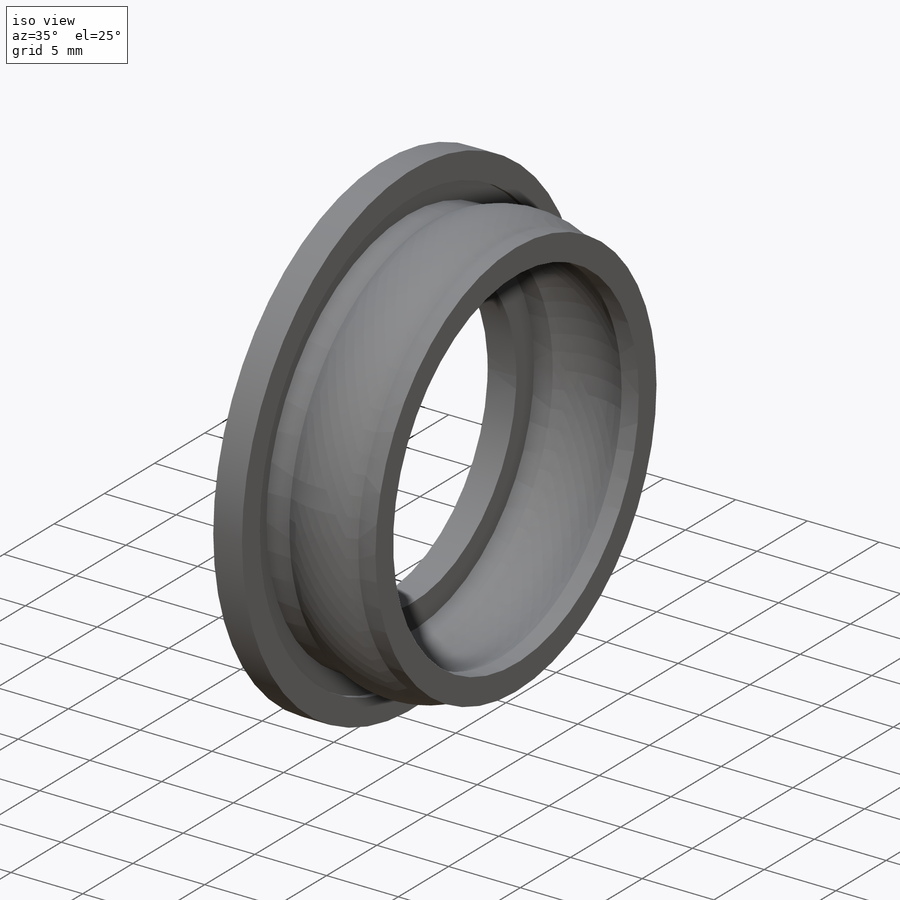
[diagram: iso view]
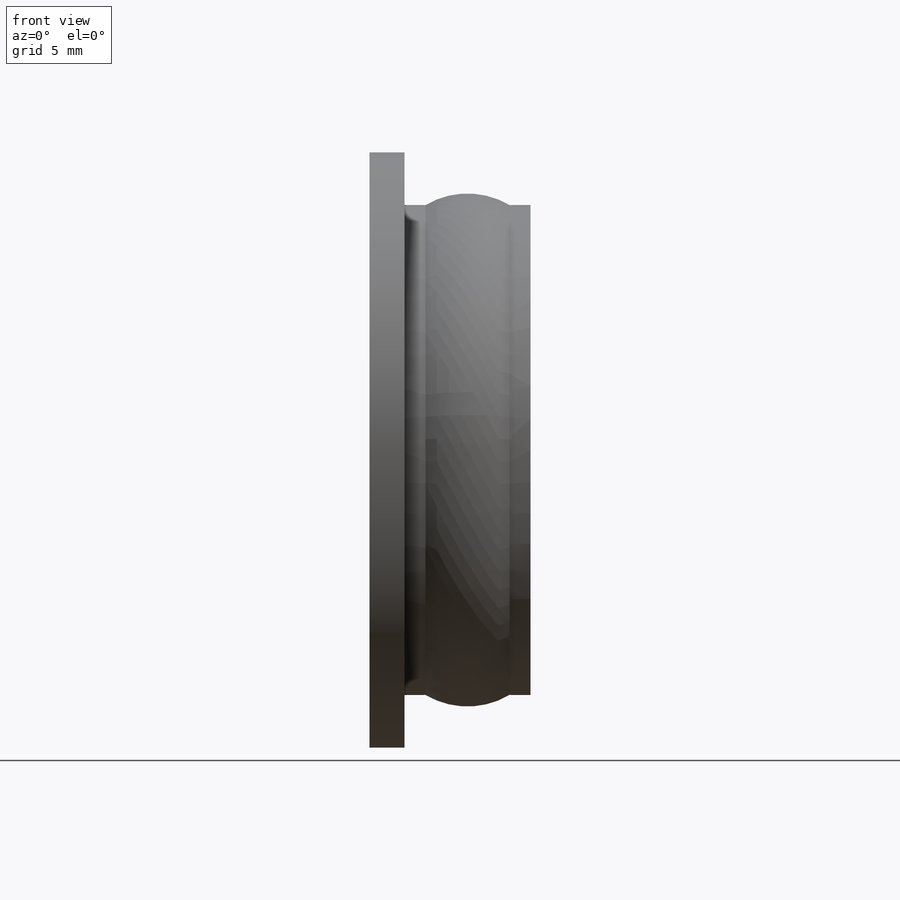
[diagram: front view]
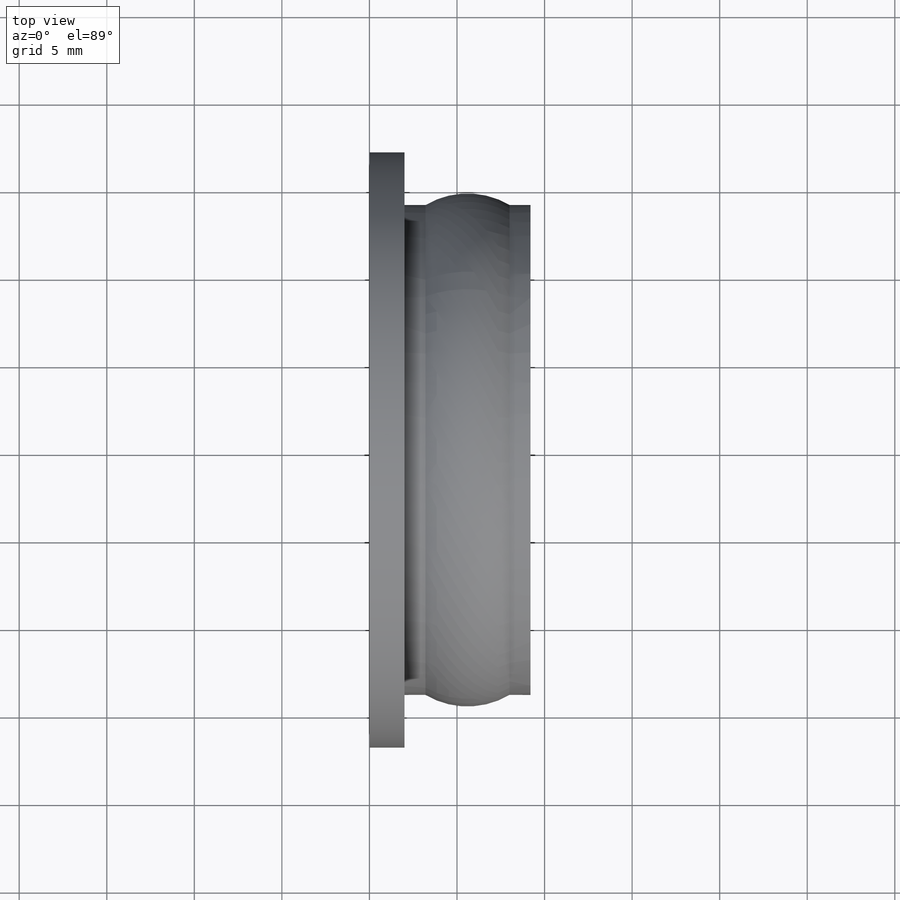
[diagram: top view]
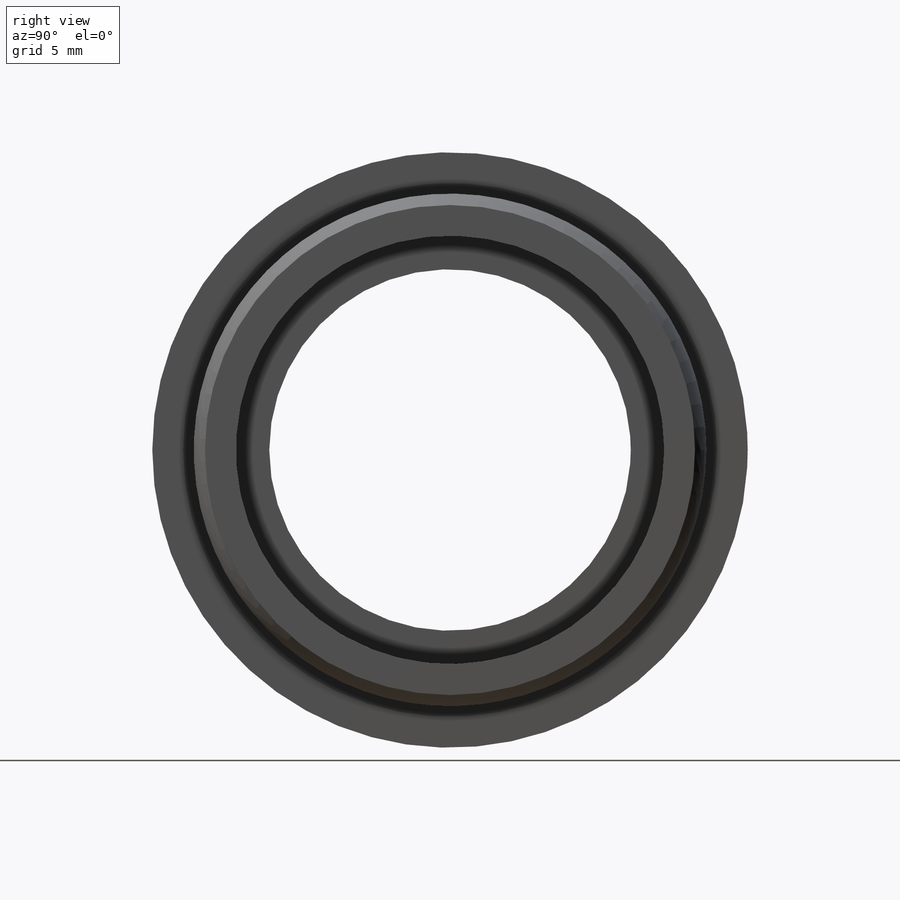
[diagram: right view]
SOLIDWORKS PART (.sldprt)
format: sldprt  version: not decoded by parser v0  size: 230,400 bytes
history: native  units: mm
features: sketch x4, cut_extrude x2, material x1, extrude x1, revolve x1 (+11 scaffold rows collapsed)
feature tree (20):
  scaffold x11  (default folders/planes/origin — collapsed)
  material  "Material <not specified>"
  sketch  "Sketch1"  dims[D1=18.0mm]
  extrude  "Boss-Extrude1"  Depth=2mm
  sketch  "Sketch4"  dims[c1.D2=1.76mm c1.D1=1.2mm c2.D2=1.2mm c2.D3=1.76mm c2.D1=0.44mm c3.D2=0.66mm c3.D3=1.76mm c3.D4=1.76mm]
  revolve  "Revolve3"  Angle=360deg
  sketch  "Sketch5"  dims[D1=1.76mm]
  cut_extrude  "Cut-Extrude1"  Depth=0.4mm
  sketch  "Sketch6"  dims[D1=1.76mm]
  cut_extrude  "Cut-Extrude2"  Depth=0.4mm
decode coverage: 8 of 8 modeling features carry decoded parameters
note: suppression state not decoded; provenance and decode notes live in map.json
